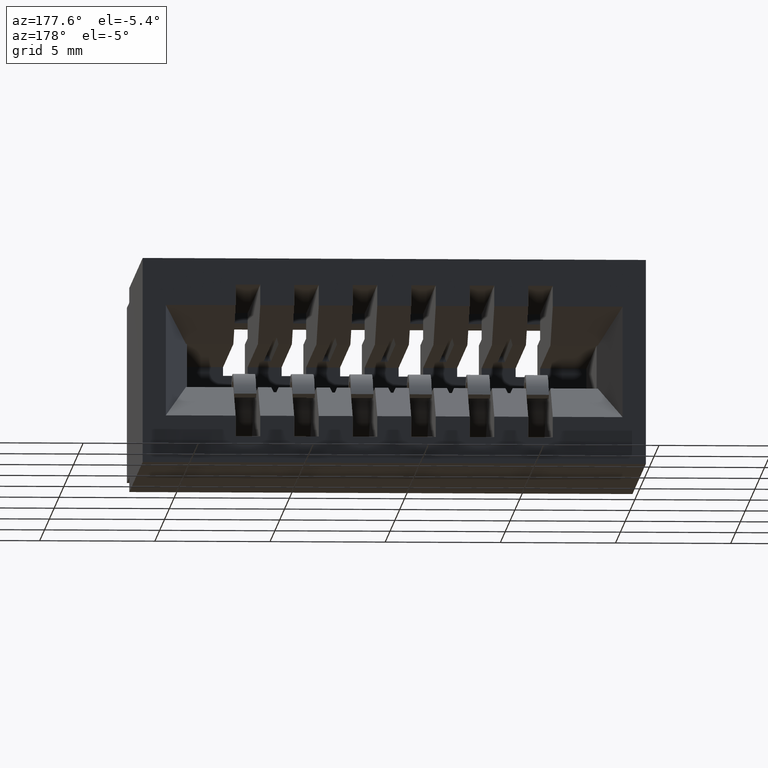
[diagram: clean part render]
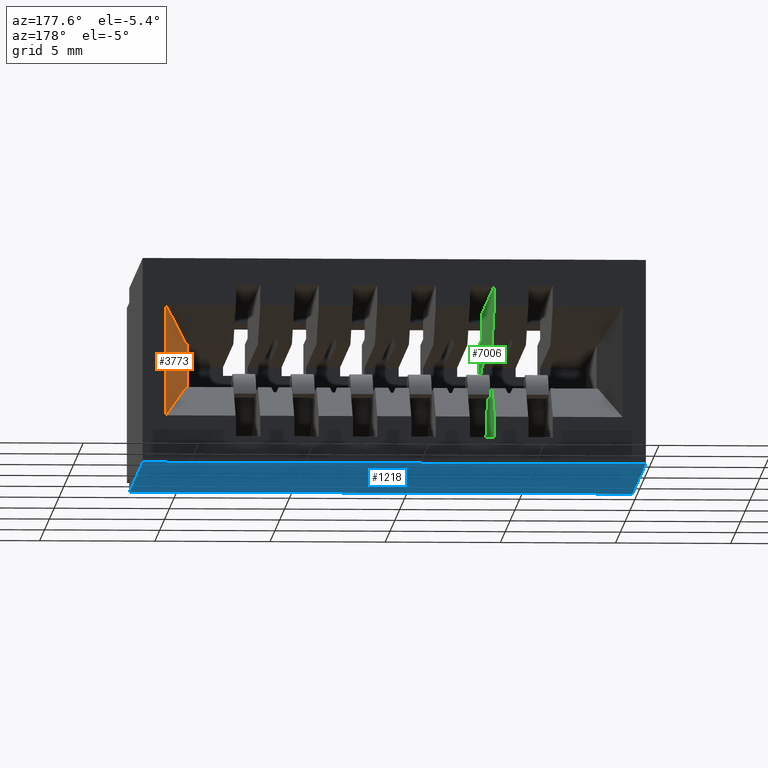
[diagram: same view with three faces highlighted in distinct colors, each labeled with its STEP entity id]
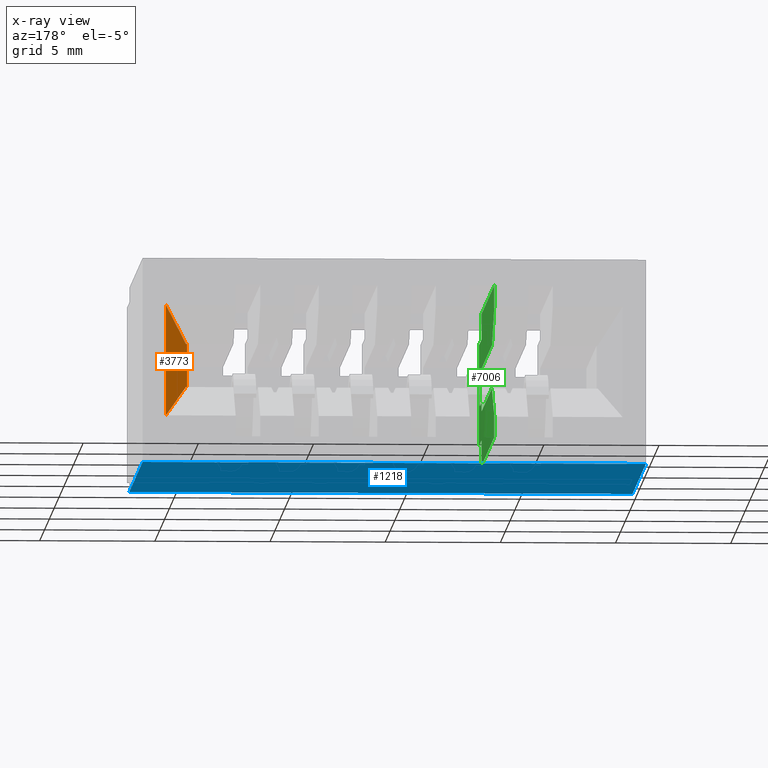
[diagram: x-ray of the same camera — body ghosted, the three highlighted faces saturated]
A machine part, auxiliary view with three faces highlighted in distinct colors.
The next image is the same camera in x-ray (body ghosted, the three faces saturated) — at least one of them is partly hidden behind the body in this view.
Their STEP definitions:

[orange] entity #3773 — the highlighted planar face has unit normal (0.9272, -0.3746, 0).
#154 = ORIENTED_EDGE ( 'NONE', *, *, #7201, .F. ) ;
#963 = EDGE_CURVE ( 'NONE', #8583, #4683, #3912, .T. ) ;
#1151 = VECTOR ( 'NONE', #10882, 39.37007874015748143 ) ;
#1399 = DIRECTION ( 'NONE',  ( -1.845843238962340098E-15, 0.0000000000000000000, 1.000000000000000000 ) ) ;
#1577 = LINE ( 'NONE', #6010, #14163 ) ;
#1654 = FACE_OUTER_BOUND ( 'NONE', #9447, .T. ) ;
#1698 = ORIENTED_EDGE ( 'NONE', *, *, #9368, .F. ) ;
#1869 = CARTESIAN_POINT ( 'NONE',  ( 0.8204026225835158170, 0.6449999999999999067, -0.08024999999999998801 ) ) ;
#2563 = LINE ( 'NONE', #7215, #4058 ) ;
#2749 = VECTOR ( 'NONE', #4066, 39.37007874015748854 ) ;
#3064 = CARTESIAN_POINT ( 'NONE',  ( 0.7800000000000002487, 0.5449999999999993738, -0.1380000000000002613 ) ) ;
#3305 = AXIS2_PLACEMENT_3D ( 'NONE', #9749, #11024, #10803 ) ;
#3424 = CARTESIAN_POINT ( 'NONE',  ( 0.7800000000000002487, 0.5449999999999993738, -0.1380000000000002613 ) ) ;
#3773 = ADVANCED_FACE ( 'NONE', ( #1654 ), #9604, .F. ) ;
#3794 = CARTESIAN_POINT ( 'NONE',  ( 0.8204026225835160391, 0.6449999999999999067, -0.2697499999999999898 ) ) ;
#3912 = LINE ( 'NONE', #14345, #2749 ) ;
#4058 = VECTOR ( 'NONE', #10657, 39.37007874015748143 ) ;
#4066 = DIRECTION ( 'NONE',  ( -0.3263402238770132802, -0.8077203978589359012, -0.4910089786984582760 ) ) ;
#4517 = ORIENTED_EDGE ( 'NONE', *, *, #963, .F. ) ;
#4683 = VERTEX_POINT ( 'NONE', #8076 ) ;
#4916 = CARTESIAN_POINT ( 'NONE',  ( 0.8204026225835162611, 0.6449999999999999067, -0.3499999999999984790 ) ) ;
#5070 = EDGE_CURVE ( 'NONE', #12453, #5238, #7167, .T. ) ;
#5238 = VERTEX_POINT ( 'NONE', #14142 ) ;
#6010 = CARTESIAN_POINT ( 'NONE',  ( 0.5376273182482890212, -0.05489343823091891866, -0.2120000000000002716 ) ) ;
#6040 = LINE ( 'NONE', #4916, #9207 ) ;
#6192 = VECTOR ( 'NONE', #10389, 39.37007874015748143 ) ;
#6921 = ORIENTED_EDGE ( 'NONE', *, *, #7441, .F. ) ;
#7167 = LINE ( 'NONE', #3424, #6192 ) ;
#7201 = EDGE_CURVE ( 'NONE', #5238, #12289, #1577, .T. ) ;
#7215 = CARTESIAN_POINT ( 'NONE',  ( 0.7686295705220559382, 0.5168571994814415982, -0.1918526660005605844 ) ) ;
#7225 = LINE ( 'NONE', #14128, #1151 ) ;
#7441 = EDGE_CURVE ( 'NONE', #14275, #8583, #6040, .T. ) ;
#8076 = CARTESIAN_POINT ( 'NONE',  ( 0.7820201311291762325, 0.5499999999999999334, -0.1379999999999999838 ) ) ;
#8583 = VERTEX_POINT ( 'NONE', #1869 ) ;
#9207 = VECTOR ( 'NONE', #1399, 39.37007874015748143 ) ;
#9368 = EDGE_CURVE ( 'NONE', #4683, #12453, #7225, .T. ) ;
#9438 = CARTESIAN_POINT ( 'NONE',  ( 0.7820201311291766766, 0.5499999999999999334, -0.2119999999999999940 ) ) ;
#9447 = EDGE_LOOP ( 'NONE', ( #4517, #6921, #11850, #154, #9737, #1698 ) ) ;
#9604 = PLANE ( 'NONE',  #3305 ) ;
#9737 = ORIENTED_EDGE ( 'NONE', *, *, #5070, .F. ) ;
#9749 = CARTESIAN_POINT ( 'NONE',  ( 0.7800000000000002487, 0.5449999999999993738, -0.1380000000000002613 ) ) ;
#10389 = DIRECTION ( 'NONE',  ( 1.845843238962340098E-15, 0.0000000000000000000, -1.000000000000000000 ) ) ;
#10657 = DIRECTION ( 'NONE',  ( 0.3263402238770148900, 0.8077203978589354572, -0.4910089786984579985 ) ) ;
#10803 = DIRECTION ( 'NONE',  ( 0.3746065934159090727, 0.9271838545667886455, 0.0000000000000000000 ) ) ;
#10882 = DIRECTION ( 'NONE',  ( -0.3746065934159090727, -0.9271838545667886455, 0.0000000000000000000 ) ) ;
#10946 = EDGE_CURVE ( 'NONE', #12289, #14275, #2563, .T. ) ;
#11024 = DIRECTION ( 'NONE',  ( 0.9271838545667886455, -0.3746065934159090727, 1.711436049227148415E-15 ) ) ;
#11791 = DIRECTION ( 'NONE',  ( 0.3746065934159090727, 0.9271838545667886455, -0.0000000000000000000 ) ) ;
#11850 = ORIENTED_EDGE ( 'NONE', *, *, #10946, .F. ) ;
#12289 = VERTEX_POINT ( 'NONE', #9438 ) ;
#12453 = VERTEX_POINT ( 'NONE', #3064 ) ;
#14128 = CARTESIAN_POINT ( 'NONE',  ( 0.6358583881297594775, 0.1882369914297288005, -0.1380000000000002613 ) ) ;
#14142 = CARTESIAN_POINT ( 'NONE',  ( 0.7800000000000004707, 0.5449999999999993738, -0.2120000000000002716 ) ) ;
#14163 = VECTOR ( 'NONE', #11791, 39.37007874015748143 ) ;
#14275 = VERTEX_POINT ( 'NONE', #3794 ) ;
#14345 = CARTESIAN_POINT ( 'NONE',  ( 0.7804870330445775606, 0.5462054490858119227, -0.1403066875294142757 ) ) ;

[blue] entity #1218 — the highlighted planar face has unit normal (0, 0, 1).
#141 = DIRECTION ( 'NONE',  ( 0.0000000000000000000, 0.0000000000000000000, 1.000000000000000000 ) ) ;
#908 = VECTOR ( 'NONE', #3876, 39.37007874015748143 ) ;
#1008 = CARTESIAN_POINT ( 'NONE',  ( 0.0000000000000000000, 0.1000000000000000056, -0.3499999999999999778 ) ) ;
#1218 = ADVANCED_FACE ( 'NONE', ( #3461 ), #11487, .F. ) ;
#1715 = CARTESIAN_POINT ( 'NONE',  ( 0.8599999999999999867, 0.1000000000000000056, -0.3499999999999999778 ) ) ;
#1737 = VERTEX_POINT ( 'NONE', #6052 ) ;
#1963 = EDGE_LOOP ( 'NONE', ( #5794, #4466, #2766, #11046 ) ) ;
#2766 = ORIENTED_EDGE ( 'NONE', *, *, #12775, .F. ) ;
#3246 = EDGE_CURVE ( 'NONE', #7666, #1737, #11533, .T. ) ;
#3461 = FACE_OUTER_BOUND ( 'NONE', #1963, .T. ) ;
#3876 = DIRECTION ( 'NONE',  ( -1.000000000000000000, -0.0000000000000000000, -0.0000000000000000000 ) ) ;
#4466 = ORIENTED_EDGE ( 'NONE', *, *, #4687, .T. ) ;
#4687 = EDGE_CURVE ( 'NONE', #12418, #14102, #11609, .T. ) ;
#5747 = VECTOR ( 'NONE', #12396, 39.37007874015748143 ) ;
#5794 = ORIENTED_EDGE ( 'NONE', *, *, #13874, .T. ) ;
#5985 = CARTESIAN_POINT ( 'NONE',  ( 0.8599999999999999867, 0.6449999999999999067, -0.3499999999999999778 ) ) ;
#6052 = CARTESIAN_POINT ( 'NONE',  ( 0.0000000000000000000, 0.6449999999999999067, -0.3499999999999999778 ) ) ;
#7666 = VERTEX_POINT ( 'NONE', #12264 ) ;
#8449 = LINE ( 'NONE', #5985, #9349 ) ;
#8991 = AXIS2_PLACEMENT_3D ( 'NONE', #11629, #141, #12523 ) ;
#9187 = DIRECTION ( 'NONE',  ( -1.000000000000000000, -0.0000000000000000000, -0.0000000000000000000 ) ) ;
#9349 = VECTOR ( 'NONE', #10559, 39.37007874015748143 ) ;
#10559 = DIRECTION ( 'NONE',  ( -0.0000000000000000000, -1.000000000000000000, -0.0000000000000000000 ) ) ;
#10947 = VECTOR ( 'NONE', #9187, 39.37007874015748143 ) ;
#11046 = ORIENTED_EDGE ( 'NONE', *, *, #3246, .F. ) ;
#11487 = PLANE ( 'NONE',  #8991 ) ;
#11533 = LINE ( 'NONE', #13763, #10947 ) ;
#11609 = LINE ( 'NONE', #14227, #908 ) ;
#11629 = CARTESIAN_POINT ( 'NONE',  ( 0.0000000000000000000, 0.6449999999999999067, -0.3499999999999999778 ) ) ;
#12175 = CARTESIAN_POINT ( 'NONE',  ( 0.0000000000000000000, 0.6449999999999999067, -0.3499999999999999778 ) ) ;
#12264 = CARTESIAN_POINT ( 'NONE',  ( 0.8599999999999999867, 0.6449999999999999067, -0.3499999999999999778 ) ) ;
#12396 = DIRECTION ( 'NONE',  ( -0.0000000000000000000, -1.000000000000000000, -0.0000000000000000000 ) ) ;
#12418 = VERTEX_POINT ( 'NONE', #1715 ) ;
#12523 = DIRECTION ( 'NONE',  ( 1.000000000000000000, 0.0000000000000000000, -0.0000000000000000000 ) ) ;
#12775 = EDGE_CURVE ( 'NONE', #1737, #14102, #14590, .T. ) ;
#13763 = CARTESIAN_POINT ( 'NONE',  ( 0.0000000000000000000, 0.6449999999999999067, -0.3499999999999999778 ) ) ;
#13874 = EDGE_CURVE ( 'NONE', #7666, #12418, #8449, .T. ) ;
#14102 = VERTEX_POINT ( 'NONE', #1008 ) ;
#14227 = CARTESIAN_POINT ( 'NONE',  ( 0.8599999999999999867, 0.1000000000000000056, -0.3499999999999999778 ) ) ;
#14590 = LINE ( 'NONE', #12175, #5747 ) ;

[green] entity #7006 — the highlighted planar face has unit normal (1, -0, -0).
#289 = EDGE_CURVE ( 'NONE', #10662, #13610, #11383, .T. ) ;
#499 = CARTESIAN_POINT ( 'NONE',  ( 0.2589999999999997304, 0.5499999999999998224, -0.2119999999999999385 ) ) ;
#500 = LINE ( 'NONE', #7196, #4749 ) ;
#554 = VERTEX_POINT ( 'NONE', #6251 ) ;
#1119 = CARTESIAN_POINT ( 'NONE',  ( 0.2589999999999997304, 0.5499999999999999334, -0.1380000000000000115 ) ) ;
#1123 = EDGE_CURVE ( 'NONE', #8740, #7269, #4290, .T. ) ;
#1171 = CARTESIAN_POINT ( 'NONE',  ( 0.2589999999999996749, 0.1299999999999999212, -0.1969999999999995088 ) ) ;
#1242 = CARTESIAN_POINT ( 'NONE',  ( 0.2589999999999996749, 0.1299999999999999212, -0.1380000000000003169 ) ) ;
#1281 = FACE_OUTER_BOUND ( 'NONE', #5701, .T. ) ;
#1392 = DIRECTION ( 'NONE',  ( 2.444074818391193237E-16, 0.0000000000000000000, 1.000000000000000000 ) ) ;
#1503 = EDGE_CURVE ( 'NONE', #7563, #2256, #13558, .T. ) ;
#1512 = EDGE_CURVE ( 'NONE', #5394, #7563, #3487, .T. ) ;
#1589 = VECTOR ( 'NONE', #7366, 39.37007874015748143 ) ;
#1741 = CARTESIAN_POINT ( 'NONE',  ( 0.2589999999999996749, 0.1299999999999999212, -0.1380000000000002613 ) ) ;
#1773 = CARTESIAN_POINT ( 'NONE',  ( 0.2589999999999996194, -8.874685183736367429E-33, -0.3049999999999999933 ) ) ;
#1829 = ORIENTED_EDGE ( 'NONE', *, *, #1123, .T. ) ;
#1858 = VECTOR ( 'NONE', #6961, 39.37007874015748143 ) ;
#1868 = CARTESIAN_POINT ( 'NONE',  ( 0.2589999999999996749, 0.6449999999999999067, -0.04499999999999988731 ) ) ;
#1942 = LINE ( 'NONE', #11156, #14819 ) ;
#2168 = DIRECTION ( 'NONE',  ( 7.343223917713046925E-32, -1.000000000000000000, 5.021779400118136688E-16 ) ) ;
#2171 = CARTESIAN_POINT ( 'NONE',  ( 0.2589999999999996749, -8.874685183736367429E-33, -0.04499999999999988731 ) ) ;
#2256 = VERTEX_POINT ( 'NONE', #8487 ) ;
#2257 = EDGE_CURVE ( 'NONE', #6090, #13366, #12021, .T. ) ;
#2340 = PLANE ( 'NONE',  #10105 ) ;
#2683 = DIRECTION ( 'NONE',  ( 2.444074818391193237E-16, 0.0000000000000000000, 1.000000000000000000 ) ) ;
#2753 = DIRECTION ( 'NONE',  ( -4.614608097405849258E-16, -1.313388458492438996E-15, -1.000000000000000000 ) ) ;
#2963 = EDGE_CURVE ( 'NONE', #14236, #6684, #14304, .T. ) ;
#2978 = LINE ( 'NONE', #3205, #8056 ) ;
#2991 = DIRECTION ( 'NONE',  ( -1.000000000000000000, 4.930380657631323784E-32, 2.444074818391193237E-16 ) ) ;
#3000 = AXIS2_PLACEMENT_3D ( 'NONE', #7783, #2991, #4413 ) ;
#3094 = EDGE_CURVE ( 'NONE', #554, #11608, #2978, .T. ) ;
#3138 = EDGE_CURVE ( 'NONE', #10632, #13232, #4104, .T. ) ;
#3205 = CARTESIAN_POINT ( 'NONE',  ( 0.2589999999999996749, 0.1299999999999999212, -0.1380000000000003169 ) ) ;
#3217 = CARTESIAN_POINT ( 'NONE',  ( 0.2590000000004585856, 0.1299999999999999212, -0.1529999999999994975 ) ) ;
#3365 = VECTOR ( 'NONE', #11330, 39.37007874015748143 ) ;
#3407 = ORIENTED_EDGE ( 'NONE', *, *, #11306, .T. ) ;
#3472 = ORIENTED_EDGE ( 'NONE', *, *, #11589, .T. ) ;
#3487 = CIRCLE ( 'NONE', #3000, 0.02199999999999996403 ) ;
#3497 = CARTESIAN_POINT ( 'NONE',  ( 0.2589999999999997304, 0.6450000000000001288, -0.08024999999999993250 ) ) ;
#3519 = CARTESIAN_POINT ( 'NONE',  ( 0.2589999999999997304, 0.1300000000000000044, -0.08850000000000007860 ) ) ;
#3618 = CARTESIAN_POINT ( 'NONE',  ( 0.2589999999999996749, -8.874685183736367429E-33, -3.914800822876525978E-17 ) ) ;
#3888 = EDGE_CURVE ( 'NONE', #13107, #5574, #6679, .T. ) ;
#4104 = LINE ( 'NONE', #14686, #7343 ) ;
#4247 = ORIENTED_EDGE ( 'NONE', *, *, #3888, .F. ) ;
#4290 = LINE ( 'NONE', #12309, #10891 ) ;
#4362 = CARTESIAN_POINT ( 'NONE',  ( 0.2589999999999996749, 0.1300000000000000600, -0.2615000000000000102 ) ) ;
#4396 = EDGE_CURVE ( 'NONE', #11608, #5394, #1942, .T. ) ;
#4402 = LINE ( 'NONE', #12644, #4514 ) ;
#4413 = DIRECTION ( 'NONE',  ( 0.0000000000000000000, 0.0000000000000000000, -1.000000000000000000 ) ) ;
#4514 = VECTOR ( 'NONE', #11371, 39.37007874015748143 ) ;
#4523 = ORIENTED_EDGE ( 'NONE', *, *, #3138, .T. ) ;
#4546 = DIRECTION ( 'NONE',  ( -1.269568538794947427E-16, -0.8545023705661021207, -0.5194474936862356618 ) ) ;
#4590 = ORIENTED_EDGE ( 'NONE', *, *, #13331, .F. ) ;
#4749 = VECTOR ( 'NONE', #2753, 39.37007874015748143 ) ;
#4803 = VECTOR ( 'NONE', #14829, 39.37007874015748143 ) ;
#5053 = EDGE_CURVE ( 'NONE', #13931, #6684, #13687, .T. ) ;
#5268 = ORIENTED_EDGE ( 'NONE', *, *, #11292, .F. ) ;
#5394 = VERTEX_POINT ( 'NONE', #7749 ) ;
#5446 = CARTESIAN_POINT ( 'NONE',  ( 0.2589999999999996749, 0.1299999999999999212, -0.1380000000000002613 ) ) ;
#5548 = DIRECTION ( 'NONE',  ( 2.444074818391193237E-16, 0.0000000000000000000, 1.000000000000000000 ) ) ;
#5574 = VERTEX_POINT ( 'NONE', #11089 ) ;
#5701 = EDGE_LOOP ( 'NONE', ( #12989, #9437, #14645, #11843, #12771, #6767, #5268, #3472, #1829, #4590, #4523, #3407, #4247, #13380, #13521, #11827, #6479, #12537, #5793, #10366 ) ) ;
#5708 = DIRECTION ( 'NONE',  ( -2.444074818391193237E-16, 0.0000000000000000000, -1.000000000000000000 ) ) ;
#5793 = ORIENTED_EDGE ( 'NONE', *, *, #4396, .T. ) ;
#6036 = CARTESIAN_POINT ( 'NONE',  ( 0.2589999999999996194, 0.5499999999999999334, -0.2120000000000002716 ) ) ;
#6090 = VERTEX_POINT ( 'NONE', #5446 ) ;
#6208 = DIRECTION ( 'NONE',  ( -1.269568538794946194E-16, 0.8545023705661021207, -0.5194474936862355507 ) ) ;
#6251 = CARTESIAN_POINT ( 'NONE',  ( 0.2589999999999996194, 0.1299999999999999212, -0.2120000000000002716 ) ) ;
#6328 = CARTESIAN_POINT ( 'NONE',  ( 0.2590000000004585856, 0.06199999999999999956, -0.1529999999999994975 ) ) ;
#6479 = ORIENTED_EDGE ( 'NONE', *, *, #11214, .T. ) ;
#6679 = LINE ( 'NONE', #13426, #14080 ) ;
#6684 = VERTEX_POINT ( 'NONE', #10307 ) ;
#6767 = ORIENTED_EDGE ( 'NONE', *, *, #8749, .F. ) ;
#6913 = CARTESIAN_POINT ( 'NONE',  ( 0.2589999999999996749, 0.6449999999999999067, -0.08025000000000001577 ) ) ;
#6945 = LINE ( 'NONE', #1242, #4803 ) ;
#6961 = DIRECTION ( 'NONE',  ( 4.930380657631323784E-32, 1.000000000000000000, -1.137588725299934145E-47 ) ) ;
#7006 = ADVANCED_FACE ( 'NONE', ( #1281 ), #2340, .T. ) ;
#7196 = CARTESIAN_POINT ( 'NONE',  ( 0.2589999999999996749, 0.1300000000000000044, -0.2874999999999999223 ) ) ;
#7269 = VERTEX_POINT ( 'NONE', #12297 ) ;
#7343 = VECTOR ( 'NONE', #11000, 39.37007874015748143 ) ;
#7366 = DIRECTION ( 'NONE',  ( 4.930380657631323784E-32, 1.000000000000000000, 0.0000000000000000000 ) ) ;
#7392 = VECTOR ( 'NONE', #1392, 39.37007874015748143 ) ;
#7552 = VECTOR ( 'NONE', #4546, 39.37007874015748143 ) ;
#7563 = VERTEX_POINT ( 'NONE', #6328 ) ;
#7626 = DIRECTION ( 'NONE',  ( 2.444074818391193237E-16, 0.0000000000000000000, 1.000000000000000000 ) ) ;
#7749 = CARTESIAN_POINT ( 'NONE',  ( 0.2589999999999996749, 0.06199999999999999956, -0.1969999999999994533 ) ) ;
#7783 = CARTESIAN_POINT ( 'NONE',  ( 0.2590000000004585856, 0.06200000000000000649, -0.1749999999999994615 ) ) ;
#7865 = CARTESIAN_POINT ( 'NONE',  ( 0.2589999999999996194, 0.1299999999999999212, -0.2120000000000002716 ) ) ;
#7901 = VERTEX_POINT ( 'NONE', #9471 ) ;
#8056 = VECTOR ( 'NONE', #7626, 39.37007874015748143 ) ;
#8238 = LINE ( 'NONE', #11991, #12900 ) ;
#8487 = CARTESIAN_POINT ( 'NONE',  ( 0.2589999999959827215, 0.1299999999999999212, -0.1529999999999994975 ) ) ;
#8740 = VERTEX_POINT ( 'NONE', #3519 ) ;
#8749 = EDGE_CURVE ( 'NONE', #11639, #13610, #8911, .T. ) ;
#8911 = LINE ( 'NONE', #2171, #1858 ) ;
#8960 = VECTOR ( 'NONE', #2683, 39.37007874015748143 ) ;
#9364 = DIRECTION ( 'NONE',  ( 2.444074818391193237E-16, 0.0000000000000000000, 1.000000000000000000 ) ) ;
#9424 = CARTESIAN_POINT ( 'NONE',  ( 0.2589999999999996749, 0.6449999999999999067, -3.914800822876525978E-17 ) ) ;
#9437 = ORIENTED_EDGE ( 'NONE', *, *, #14070, .T. ) ;
#9471 = CARTESIAN_POINT ( 'NONE',  ( 0.2589999999999996749, 0.1300000000000000044, -0.06250000000000016653 ) ) ;
#9611 = CARTESIAN_POINT ( 'NONE',  ( 0.2589999999999996194, 0.1300000000000000044, -0.3049999999999999933 ) ) ;
#9633 = CARTESIAN_POINT ( 'NONE',  ( 0.2589999999999996749, 0.01500000000000002720, -0.2615000000000001767 ) ) ;
#10105 = AXIS2_PLACEMENT_3D ( 'NONE', #3618, #11634, #5708 ) ;
#10244 = LINE ( 'NONE', #3497, #7552 ) ;
#10307 = CARTESIAN_POINT ( 'NONE',  ( 0.2589999999999996749, 0.6449999999999999067, -0.2697499999999999898 ) ) ;
#10366 = ORIENTED_EDGE ( 'NONE', *, *, #1512, .T. ) ;
#10461 = CARTESIAN_POINT ( 'NONE',  ( 0.2589999999999996749, 0.6449999999999999067, -3.914800822876525978E-17 ) ) ;
#10632 = VERTEX_POINT ( 'NONE', #9633 ) ;
#10662 = VERTEX_POINT ( 'NONE', #6913 ) ;
#10891 = VECTOR ( 'NONE', #13276, 39.37007874015748143 ) ;
#10973 = VECTOR ( 'NONE', #13785, 39.37007874015748143 ) ;
#11000 = DIRECTION ( 'NONE',  ( 6.851308626328820665E-31, 1.000000000000000000, 1.484699996556664595E-15 ) ) ;
#11089 = CARTESIAN_POINT ( 'NONE',  ( 0.2589999999999996749, 0.1300000000000000044, -0.2874999999999999223 ) ) ;
#11144 = LINE ( 'NONE', #1773, #13433 ) ;
#11146 = VECTOR ( 'NONE', #13338, 39.37007874015748143 ) ;
#11156 = CARTESIAN_POINT ( 'NONE',  ( 0.2590000000004585856, 0.1299999999999999212, -0.1969999999999995088 ) ) ;
#11214 = EDGE_CURVE ( 'NONE', #14236, #554, #11552, .T. ) ;
#11292 = EDGE_CURVE ( 'NONE', #7901, #11639, #8238, .T. ) ;
#11306 = EDGE_CURVE ( 'NONE', #13232, #5574, #500, .T. ) ;
#11330 = DIRECTION ( 'NONE',  ( 2.444074818391193237E-16, 3.129769166712805433E-31, 1.000000000000000000 ) ) ;
#11371 = DIRECTION ( 'NONE',  ( 8.519276487518540697E-16, 0.0000000000000000000, -1.000000000000000000 ) ) ;
#11383 = LINE ( 'NONE', #9424, #8960 ) ;
#11552 = LINE ( 'NONE', #7865, #10973 ) ;
#11589 = EDGE_CURVE ( 'NONE', #7901, #8740, #4402, .T. ) ;
#11608 = VERTEX_POINT ( 'NONE', #1171 ) ;
#11634 = DIRECTION ( 'NONE',  ( 1.000000000000000000, -4.930380657631323784E-32, -2.444074818391193237E-16 ) ) ;
#11639 = VERTEX_POINT ( 'NONE', #12429 ) ;
#11827 = ORIENTED_EDGE ( 'NONE', *, *, #2963, .F. ) ;
#11843 = ORIENTED_EDGE ( 'NONE', *, *, #14156, .F. ) ;
#11991 = CARTESIAN_POINT ( 'NONE',  ( 0.2589999999999996749, 0.1300000000000000044, -3.914800822876525978E-17 ) ) ;
#12021 = LINE ( 'NONE', #1741, #1589 ) ;
#12297 = CARTESIAN_POINT ( 'NONE',  ( 0.2589999999999997304, 0.01499999999999998904, -0.08849999999999998146 ) ) ;
#12309 = CARTESIAN_POINT ( 'NONE',  ( 0.2589999999999997304, 0.1300000000000000044, -0.08850000000000007860 ) ) ;
#12429 = CARTESIAN_POINT ( 'NONE',  ( 0.2589999999999996749, 0.1300000000000000044, -0.04499999999999988731 ) ) ;
#12455 = CARTESIAN_POINT ( 'NONE',  ( 0.2589999999999996749, 0.01499999999999999424, -3.914800822876526595E-17 ) ) ;
#12537 = ORIENTED_EDGE ( 'NONE', *, *, #3094, .T. ) ;
#12595 = LINE ( 'NONE', #12455, #3365 ) ;
#12644 = CARTESIAN_POINT ( 'NONE',  ( 0.2589999999999996749, 0.1300000000000000044, -0.06250000000000016653 ) ) ;
#12771 = ORIENTED_EDGE ( 'NONE', *, *, #289, .T. ) ;
#12861 = VECTOR ( 'NONE', #6208, 39.37007874015748854 ) ;
#12900 = VECTOR ( 'NONE', #9364, 39.37007874015748143 ) ;
#12989 = ORIENTED_EDGE ( 'NONE', *, *, #1503, .T. ) ;
#13107 = VERTEX_POINT ( 'NONE', #9611 ) ;
#13232 = VERTEX_POINT ( 'NONE', #4362 ) ;
#13276 = DIRECTION ( 'NONE',  ( 4.110785175797292049E-31, -1.000000000000000000, 8.908199979339986784E-16 ) ) ;
#13319 = DIRECTION ( 'NONE',  ( 4.930380657631323784E-32, 1.000000000000000000, -1.137588725299934145E-47 ) ) ;
#13331 = EDGE_CURVE ( 'NONE', #10632, #7269, #12595, .T. ) ;
#13338 = DIRECTION ( 'NONE',  ( 2.334078752064788094E-31, 1.000000000000000000, 7.532669100177206511E-16 ) ) ;
#13366 = VERTEX_POINT ( 'NONE', #1119 ) ;
#13380 = ORIENTED_EDGE ( 'NONE', *, *, #13960, .T. ) ;
#13426 = CARTESIAN_POINT ( 'NONE',  ( 0.2589999999999996749, 0.1300000000000000044, -3.914800822876525978E-17 ) ) ;
#13433 = VECTOR ( 'NONE', #13319, 39.37007874015748143 ) ;
#13521 = ORIENTED_EDGE ( 'NONE', *, *, #5053, .T. ) ;
#13558 = LINE ( 'NONE', #3217, #11146 ) ;
#13610 = VERTEX_POINT ( 'NONE', #1868 ) ;
#13687 = LINE ( 'NONE', #10461, #7392 ) ;
#13785 = DIRECTION ( 'NONE',  ( -4.930380657631323784E-32, -1.000000000000000000, 0.0000000000000000000 ) ) ;
#13931 = VERTEX_POINT ( 'NONE', #14461 ) ;
#13960 = EDGE_CURVE ( 'NONE', #13107, #13931, #11144, .T. ) ;
#14070 = EDGE_CURVE ( 'NONE', #2256, #6090, #6945, .T. ) ;
#14080 = VECTOR ( 'NONE', #5548, 39.37007874015748143 ) ;
#14156 = EDGE_CURVE ( 'NONE', #10662, #13366, #10244, .T. ) ;
#14236 = VERTEX_POINT ( 'NONE', #6036 ) ;
#14304 = LINE ( 'NONE', #499, #12861 ) ;
#14461 = CARTESIAN_POINT ( 'NONE',  ( 0.2589999999999996194, 0.6449999999999999067, -0.3049999999999999933 ) ) ;
#14645 = ORIENTED_EDGE ( 'NONE', *, *, #2257, .T. ) ;
#14686 = CARTESIAN_POINT ( 'NONE',  ( 0.2589999999999996749, 0.1300000000000000600, -0.2615000000000000102 ) ) ;
#14819 = VECTOR ( 'NONE', #2168, 39.37007874015748143 ) ;
#14829 = DIRECTION ( 'NONE',  ( 2.444074818391193237E-16, 0.0000000000000000000, 1.000000000000000000 ) ) ;